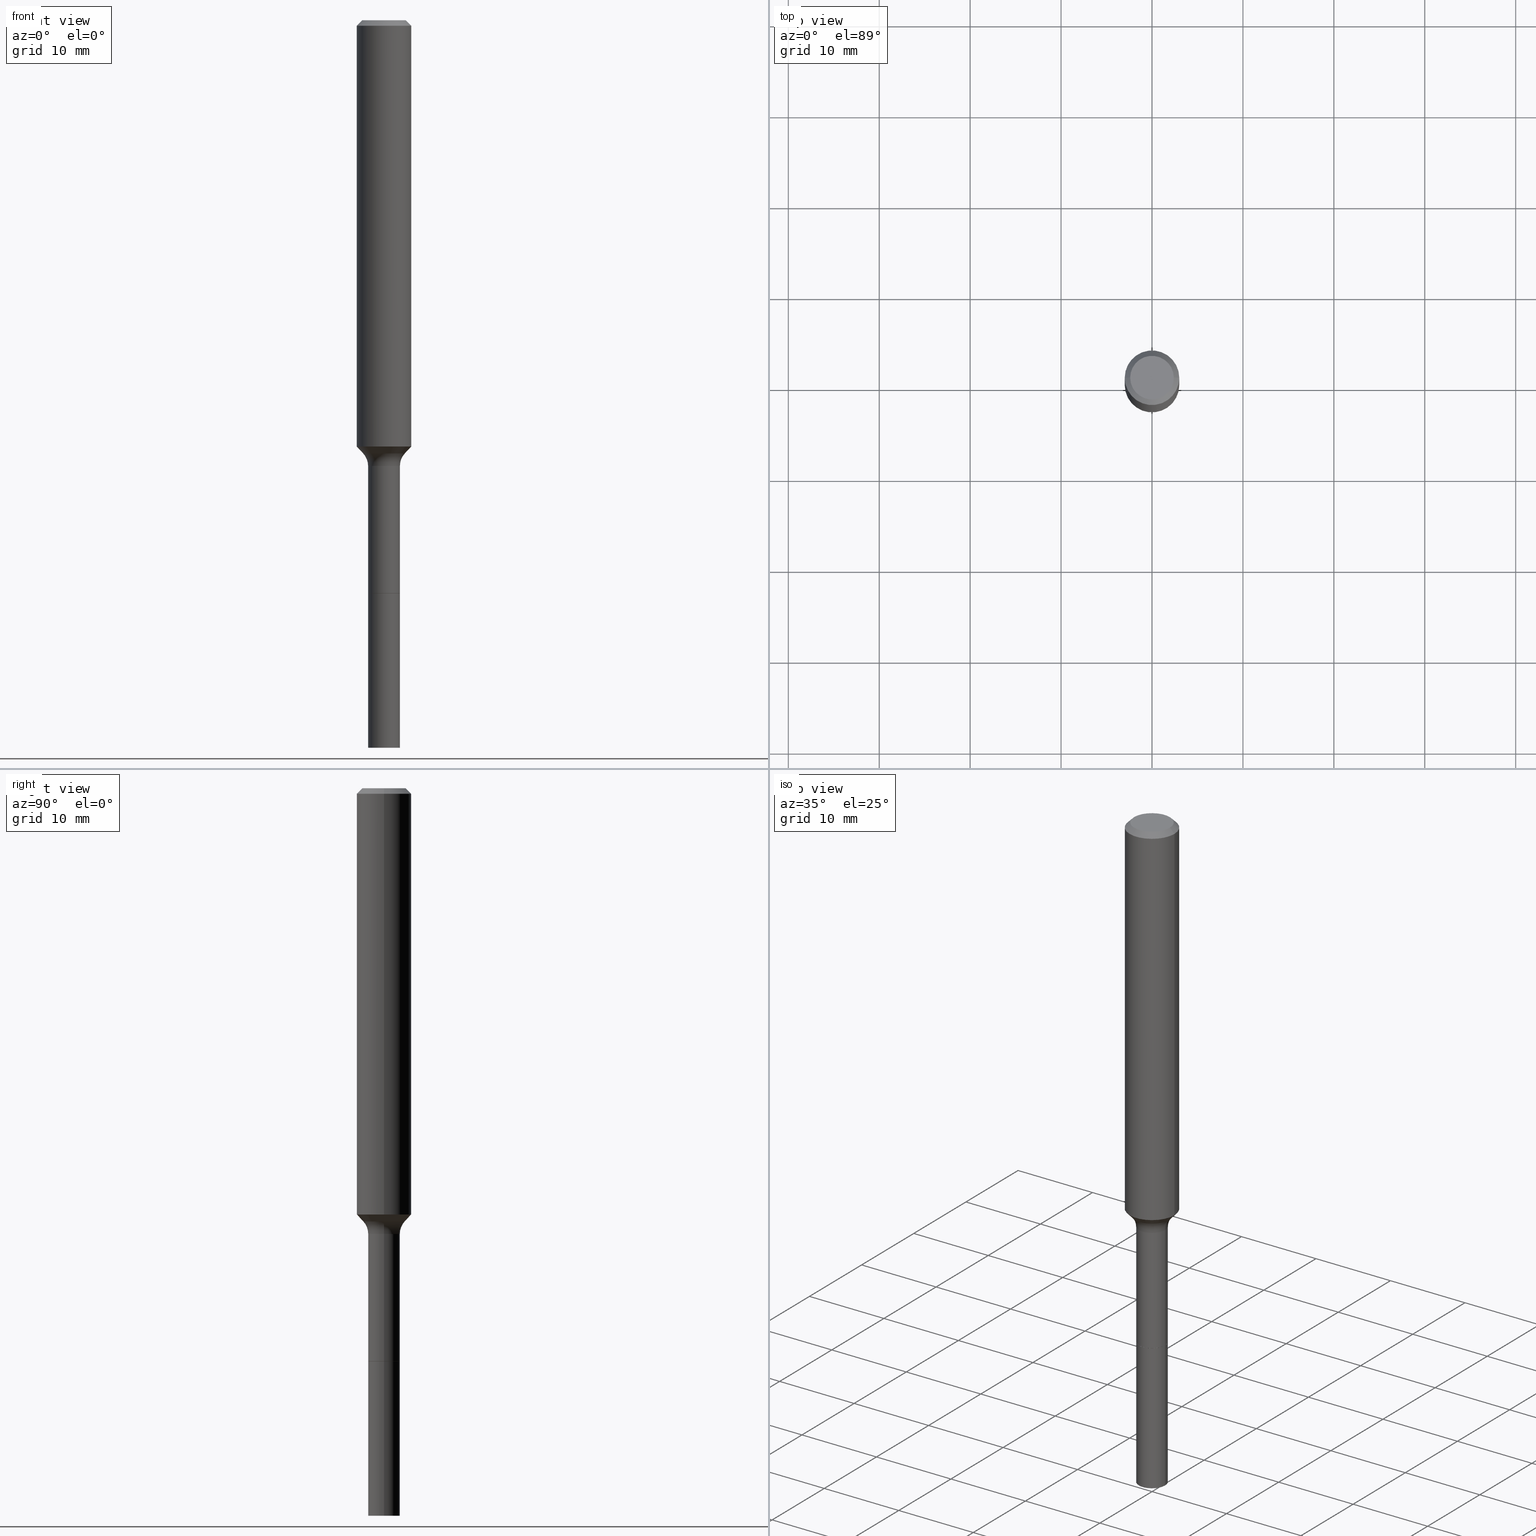
[diagram: canonical four-view strip — front | top / right | iso, engineering-drawing reading convention]
A machine part, canonical four-view strip (front | top / right | iso — engineering-drawing reading convention). The complete STEP part file that produces these views, byte-faithful:
ISO-10303-21;
HEADER;
FILE_DESCRIPTION (( 'STEP AP203' ),
    '1' );
FILE_NAME ('67821.STEP',
    '2025-04-01T15:31:03',
    ( '' ),
    ( '' ),
    'SwSTEP 2.0',
    'SolidWorks 2024',
    '' );
FILE_SCHEMA (( 'CONFIG_CONTROL_DESIGN' ));
ENDSEC;

DATA;
#1 = AXIS2_PLACEMENT_3D ( 'NONE', #496, #146, #144 ) ;
#2 = VERTEX_POINT ( 'NONE', #495 ) ;
#3 = ORIENTED_EDGE ( 'NONE', *, *, #454, .T. ) ;
#4 = CARTESIAN_POINT ( 'NONE',  ( -0.09039170387046638333, -5.904395942067965927E-15, -1.875040131195000237 ) ) ;
#5 = DIRECTION ( 'NONE',  ( -2.445468806185136597E-29, 3.491481338843145583E-15, 1.000000000000000000 ) ) ;
#6 = ORIENTED_EDGE ( 'NONE', *, *, #430, .F. ) ;
#7 = CALENDAR_DATE ( 2025, 1, 4 ) ;
#8 = PLANE ( 'NONE',  #432 ) ;
#9 = PRODUCT ( '67821', '67821', '', ( #207 ) ) ;
#10 = DIRECTION ( 'NONE',  ( 1.000000000000000000, -6.982962677686280121E-15, 0.000000000000000000 ) ) ;
#11 = ORIENTED_EDGE ( 'NONE', *, *, #195, .F. ) ;
#12 = CIRCLE ( 'NONE', #235, 0.07999999999999996003 ) ;
#13 = CARTESIAN_POINT ( 'NONE',  ( 5.776197320209328408E-31, -8.246878922347560526E-17, -0.02362000000000014435 ) ) ;
#14 = EDGE_CURVE ( 'NONE', #243, #37, #49, .T. ) ;
#15 = LINE ( 'NONE', #94, #390 ) ;
#16 = LOCAL_TIME ( 11, 31, 3.000000000000000000, #278 ) ;
#17 = CC_DESIGN_PERSON_AND_ORGANIZATION_ASSIGNMENT ( #518, #248, ( #9 ) ) ;
#18 = DIRECTION ( 'NONE',  ( -2.438088387897960049E-29, 3.491481338843145188E-15, 1.000000000000000000 ) ) ;
#19 = CARTESIAN_POINT ( 'NONE',  ( 6.066229920622851108E-29, -8.660968609134307449E-15, -2.480600000000000360 ) ) ;
#20 = PERSON_AND_ORGANIZATION ( #295, #192 ) ;
#21 = PERSON_AND_ORGANIZATION_ROLE ( 'classification_officer' ) ;
#22 = CYLINDRICAL_SURFACE ( 'NONE', #153, 0.1181000000000001077 ) ;
#23 = EDGE_CURVE ( 'NONE', #147, #306, #402, .T. ) ;
#24 = APPROVAL_STATUS ( 'not_yet_approved' ) ;
#25 = LOCAL_TIME ( 11, 31, 3.000000000000000000, #260 ) ;
#26 = DIRECTION ( 'NONE',  ( 1.000000000000000000, -6.982962677686260400E-15, 0.000000000000000000 ) ) ;
#27 = ADVANCED_FACE ( 'NONE', ( #379 ), #497, .T. ) ;
#28 = CC_DESIGN_DATE_AND_TIME_ASSIGNMENT ( #63, #141, ( #80 ) ) ;
#29 = DIRECTION ( 'NONE',  ( 1.000000000000000000, -6.982962677686278543E-15, 0.000000000000000000 ) ) ;
#30 = APPLICATION_PROTOCOL_DEFINITION ( 'international standard', 'config_control_design', 1994, #459 ) ;
#31 = CARTESIAN_POINT ( 'NONE',  ( 0.06889999999999993352, -7.218288519924316946E-15, -1.929599999999999982 ) ) ;
#32 = ORIENTED_EDGE ( 'NONE', *, *, #67, .T. ) ;
#33 = VECTOR ( 'NONE', #196, 39.37007874015748143 ) ;
#34 = CC_DESIGN_DATE_AND_TIME_ASSIGNMENT ( #164, #323, ( #95 ) ) ;
#35 = AXIS2_PLACEMENT_3D ( 'NONE', #404, #299, #55 ) ;
#36 = DIRECTION ( 'NONE',  ( -2.445468806185136597E-29, 3.491481338843145583E-15, 1.000000000000000000 ) ) ;
#37 = VERTEX_POINT ( 'NONE', #145 ) ;
#38 = DATE_AND_TIME ( #239, #393 ) ;
#39 = PRODUCT_DEFINITION_SHAPE ( 'NONE', 'NONE',  #95 ) ;
#40 = DIMENSIONAL_EXPONENTS ( 1.000000000000000000, 0.000000000000000000, 0.000000000000000000, 0.000000000000000000, 0.000000000000000000, 0.000000000000000000, 0.000000000000000000 ) ;
#41 = EDGE_LOOP ( 'NONE', ( #236, #256, #457, #357 ) ) ;
#42 = CARTESIAN_POINT ( 'NONE',  ( 4.512688689899725989E-29, -6.442923462749986025E-15, -1.845326621417590074 ) ) ;
#43 = VERTEX_POINT ( 'NONE', #53 ) ;
#44 = DIRECTION ( 'NONE',  ( -2.445468806185136597E-29, 3.491481338843145583E-15, 1.000000000000000000 ) ) ;
#45 = CIRCLE ( 'NONE', #423, 0.06840000000000000246 ) ;
#46 = PERSON_AND_ORGANIZATION ( #295, #192 ) ;
#47 = DIRECTION ( 'NONE',  ( 1.000000000000000000, -6.982962677686265922E-15, 4.876176775795935793E-29 ) ) ;
#48 = ORIENTED_EDGE ( 'NONE', *, *, #232, .T. ) ;
#49 = LINE ( 'NONE', #225, #332 ) ;
#50 = EDGE_CURVE ( 'NONE', #121, #243, #15, .T. ) ;
#51 = DIRECTION ( 'NONE',  ( 1.000000000000000000, -6.982962677686278543E-15, 0.000000000000000000 ) ) ;
#52 = EDGE_CURVE ( 'NONE', #206, #37, #228, .T. ) ;
#53 = CARTESIAN_POINT ( 'NONE',  ( -0.06890000000000021108, -9.339305172038629548E-15, -3.149600000000000399 ) ) ;
#54 = VECTOR ( 'NONE', #233, 39.37007874015748143 ) ;
#55 = DIRECTION ( 'NONE',  ( 1.000000000000000000, -6.982962677686270655E-15, 0.000000000000000000 ) ) ;
#56 = LINE ( 'NONE', #177, #509 ) ;
#57 = LOCAL_TIME ( 11, 31, 3.000000000000000000, #460 ) ;
#58 = CARTESIAN_POINT ( 'NONE',  ( 6.066229920622851108E-29, -8.660968609134307449E-15, -2.480600000000000360 ) ) ;
#59 = EDGE_CURVE ( 'NONE', #484, #90, #443, .T. ) ;
#60 = DIRECTION ( 'NONE',  ( -2.445468806185136877E-29, 3.491481338843145188E-15, 1.000000000000000000 ) ) ;
#61 = DESIGN_CONTEXT ( 'detailed design', #99, 'design' ) ;
#62 = AXIS2_PLACEMENT_3D ( 'NONE', #264, #376, #100 ) ;
#63 = DATE_AND_TIME ( #270, #57 ) ;
#64 = AXIS2_PLACEMENT_3D ( 'NONE', #88, #18, #47 ) ;
#65 = DIRECTION ( 'NONE',  ( 1.000000000000000000, -6.982962677686262766E-15, 0.000000000000000000 ) ) ;
#66 = CARTESIAN_POINT ( 'NONE',  ( 0.000000000000000000, 0.000000000000000000, 0.000000000000000000 ) ) ;
#67 = EDGE_CURVE ( 'NONE', #306, #37, #56, .T. ) ;
#68 = DIRECTION ( 'NONE',  ( 0.000000000000000000, 0.000000000000000000, 1.000000000000000000 ) ) ;
#69 =( NAMED_UNIT ( * ) SI_UNIT ( $, .STERADIAN. ) SOLID_ANGLE_UNIT ( ) );
#70 = DIRECTION ( 'NONE',  ( 7.105427357601001859E-15, 1.000000000000000000, -3.491481338843145583E-15 ) ) ;
#71 =( NAMED_UNIT ( * ) PLANE_ANGLE_UNIT ( ) SI_UNIT ( $, .RADIAN. ) );
#72 = LINE ( 'NONE', #339, #198 ) ;
#73 = ADVANCED_FACE ( 'NONE', ( #182 ), #305, .T. ) ;
#74 = ORIENTED_EDGE ( 'NONE', *, *, #382, .F. ) ;
#75 = EDGE_LOOP ( 'NONE', ( #127, #133, #251, #6 ) ) ;
#76 = AXIS2_PLACEMENT_3D ( 'NONE', #42, #400, #511 ) ;
#77 = FACE_OUTER_BOUND ( 'NONE', #227, .T. ) ;
#78 = VERTEX_POINT ( 'NONE', #143 ) ;
#79 = ORIENTED_EDGE ( 'NONE', *, *, #461, .F. ) ;
#80 = SECURITY_CLASSIFICATION ( '', '', #517 ) ;
#81 = CARTESIAN_POINT ( 'NONE',  ( 0.1181000000000002187, -7.267611354984735865E-15, -1.845326621417590074 ) ) ;
#82 = DIRECTION ( 'NONE',  ( -0.7071067811860524133, 7.493145998868563446E-15, 0.7071067811870423991 ) ) ;
#83 = ORIENTED_EDGE ( 'NONE', *, *, #151, .F. ) ;
#84 = EDGE_LOOP ( 'NONE', ( #515, #171 ) ) ;
#85 = ADVANCED_FACE ( 'NONE', ( #302 ), #469, .T. ) ;
#86 = ORIENTED_EDGE ( 'NONE', *, *, #67, .F. ) ;
#87 = EDGE_CURVE ( 'NONE', #477, #442, #290, .T. ) ;
#88 = CARTESIAN_POINT ( 'NONE',  ( -7.770290382331909019E-29, -2.847565320879387641E-14, -2.480600000000000804 ) ) ;
#89 = CLOSED_SHELL ( 'NONE', ( #419, #335, #269, #406, #165, #102, #428, #157, #175, #414, #73, #343, #388, #85 ) ) ;
#90 = VERTEX_POINT ( 'NONE', #187 ) ;
#91 = ORIENTED_EDGE ( 'NONE', *, *, #396, .T. ) ;
#92 = CARTESIAN_POINT ( 'NONE',  ( 0.09447999999999998066, -7.704367267948738690E-16, -3.085620075131172158E-17 ) ) ;
#93 = CC_DESIGN_SECURITY_CLASSIFICATION ( #80, ( #215 ) ) ;
#94 = CARTESIAN_POINT ( 'NONE',  ( 0.09039170387046638333, -7.177869522149282409E-15, -1.875040131195000237 ) ) ;
#95 = PRODUCT_DEFINITION ( 'UNKNOWN', '', #215, #61 ) ;
#96 = DIRECTION ( 'NONE',  ( -1.000000000000000000, 6.982962677686265922E-15, -4.876176775795935793E-29 ) ) ;
#97 = ORIENTED_EDGE ( 'NONE', *, *, #244, .F. ) ;
#98 = LINE ( 'NONE', #130, #489 ) ;
#99 = APPLICATION_CONTEXT ( 'configuration controlled 3d designs of mechanical parts and assemblies' ) ;
#100 = DIRECTION ( 'NONE',  ( 1.000000000000000000, -6.982962677686258822E-15, 0.000000000000000000 ) ) ;
#101 = AXIS2_PLACEMENT_3D ( 'NONE', #259, #453, #218 ) ;
#102 = ADVANCED_FACE ( 'NONE', ( #416 ), #294, .T. ) ;
#103 = DIRECTION ( 'NONE',  ( -2.445468806185136597E-29, 3.491481338843145583E-15, 1.000000000000000000 ) ) ;
#104 = EDGE_LOOP ( 'NONE', ( #168, #32, #476, #172 ) ) ;
#105 = CC_DESIGN_APPROVAL ( #337, ( #215 ) ) ;
#106 = CARTESIAN_POINT ( 'NONE',  ( 6.066229920622851108E-29, -8.660968609134310604E-15, -2.480600000000000804 ) ) ;
#107 = DATE_AND_TIME ( #427, #16 ) ;
#108 = AXIS2_PLACEMENT_3D ( 'NONE', #336, #185, #491 ) ;
#109 = AXIS2_PLACEMENT_3D ( 'NONE', #482, #263, #179 ) ;
#110 =( GEOMETRIC_REPRESENTATION_CONTEXT ( 3 ) GLOBAL_UNCERTAINTY_ASSIGNED_CONTEXT ( ( #273 ) ) GLOBAL_UNIT_ASSIGNED_CONTEXT ( ( #314, #71, #69 ) ) REPRESENTATION_CONTEXT ( 'NONE', 'WORKASPACE' ) );
#111 = EDGE_CURVE ( 'NONE', #342, #206, #494, .T. ) ;
#112 = CARTESIAN_POINT ( 'NONE',  ( -0.1180999999999999966, 7.422191030112725094E-16, -0.02362000000000014435 ) ) ;
#113 = PRODUCT_RELATED_PRODUCT_CATEGORY ( 'detail', '', ( #9 ) ) ;
#114 = DIRECTION ( 'NONE',  ( -2.445468806185136597E-29, 3.491481338843145583E-15, 1.000000000000000000 ) ) ;
#115 = CIRCLE ( 'NONE', #190, 0.1180999999999999966 ) ;
#116 = EDGE_CURVE ( 'NONE', #210, #284, #386, .T. ) ;
#117 = CC_DESIGN_PERSON_AND_ORGANIZATION_ASSIGNMENT ( #380, #395, ( #215 ) ) ;
#118 = APPROVAL_ROLE ( '' ) ;
#119 = AXIS2_PLACEMENT_3D ( 'NONE', #465, #68, #253 ) ;
#120 = ORIENTED_EDGE ( 'NONE', *, *, #425, .T. ) ;
#121 = VERTEX_POINT ( 'NONE', #312 ) ;
#122 = ORIENTED_EDGE ( 'NONE', *, *, #317, .T. ) ;
#123 = ORIENTED_EDGE ( 'NONE', *, *, #23, .F. ) ;
#124 = AXIS2_PLACEMENT_3D ( 'NONE', #159, #318, #347 ) ;
#125 = MANIFOLD_SOLID_BREP ( 'Body-Move/Copy2[2]', #89 ) ;
#126 = LINE ( 'NONE', #478, #203 ) ;
#127 = ORIENTED_EDGE ( 'NONE', *, *, #137, .T. ) ;
#128 = ORIENTED_EDGE ( 'NONE', *, *, #232, .F. ) ;
#129 = DIRECTION ( 'NONE',  ( 1.000000000000000000, -6.982962677686261977E-15, 0.000000000000000000 ) ) ;
#130 = CARTESIAN_POINT ( 'NONE',  ( -0.06890000000000010005, -8.171404664195598696E-15, -2.480600000000000360 ) ) ;
#131 = ADVANCED_BREP_SHAPE_REPRESENTATION ( '67821', ( #291, #125, #119 ), #110 ) ;
#132 = LINE ( 'NONE', #366, #54 ) ;
#133 = ORIENTED_EDGE ( 'NONE', *, *, #151, .T. ) ;
#134 = PERSON_AND_ORGANIZATION_ROLE ( 'design_supplier' ) ;
#135 = ORIENTED_EDGE ( 'NONE', *, *, #362, .F. ) ;
#136 = CARTESIAN_POINT ( 'NONE',  ( 4.585352151182659149E-29, -6.546667627649346725E-15, -1.875040131195000237 ) ) ;
#137 = EDGE_CURVE ( 'NONE', #442, #477, #45, .T. ) ;
#138 = AXIS2_PLACEMENT_3D ( 'NONE', #503, #504, #463 ) ;
#139 = AXIS2_PLACEMENT_3D ( 'NONE', #13, #452, #328 ) ;
#140 = CARTESIAN_POINT ( 'NONE',  ( 7.545787641473140628E-46, -1.077338491108201769E-31, -3.085620075131671975E-17 ) ) ;
#141 = DATE_TIME_ROLE ( 'classification_date' ) ;
#142 = DIRECTION ( 'NONE',  ( 1.000000000000000000, -6.982962677686266711E-15, 4.876176775795935793E-29 ) ) ;
#143 = CARTESIAN_POINT ( 'NONE',  ( 0.06890000000000019720, -1.147789575331295763E-14, -3.149600000000000399 ) ) ;
#144 = DIRECTION ( 'NONE',  ( 1.000000000000000000, -6.982962677686267499E-15, 4.875432709231658792E-29 ) ) ;
#145 = CARTESIAN_POINT ( 'NONE',  ( 0.1180999999999999966, -9.071566814582237199E-16, -0.02362000000000014435 ) ) ;
#146 = DIRECTION ( 'NONE',  ( -2.445468806185136597E-29, 3.491481338843145583E-15, 1.000000000000000000 ) ) ;
#147 = VERTEX_POINT ( 'NONE', #285 ) ;
#148 = DIRECTION ( 'NONE',  ( 1.000000000000000000, -6.982962677686267499E-15, 4.875432709231658792E-29 ) ) ;
#149 = AXIS2_PLACEMENT_3D ( 'NONE', #19, #341, #10 ) ;
#150 = CARTESIAN_POINT ( 'NONE',  ( 0.000000000000000000, 0.000000000000000000, 0.000000000000000000 ) ) ;
#151 = EDGE_CURVE ( 'NONE', #477, #513, #126, .T. ) ;
#152 = CIRCLE ( 'NONE', #431, 0.1181000000000002187 ) ;
#153 = AXIS2_PLACEMENT_3D ( 'NONE', #315, #226, #344 ) ;
#154 = LINE ( 'NONE', #112, #498 ) ;
#155 = CARTESIAN_POINT ( 'NONE',  ( -0.09039170387046638333, -5.904395942067966716E-15, -1.875040131195000237 ) ) ;
#156 = FACE_OUTER_BOUND ( 'NONE', #479, .T. ) ;
#157 = ADVANCED_FACE ( 'NONE', ( #201 ), #282, .F. ) ;
#158 = DIRECTION ( 'NONE',  ( 1.000000000000000000, -6.982962677686273021E-15, 0.000000000000000000 ) ) ;
#159 = CARTESIAN_POINT ( 'NONE',  ( 6.066229920622851108E-29, -8.660968609134307449E-15, -2.480600000000000360 ) ) ;
#160 = EDGE_LOOP ( 'NONE', ( #401, #48 ) ) ;
#161 = CC_DESIGN_APPROVAL ( #426, ( #80 ) ) ;
#162 = DIRECTION ( 'NONE',  ( -2.445468806185136597E-29, 3.491481338843145583E-15, 1.000000000000000000 ) ) ;
#163 = ORIENTED_EDGE ( 'NONE', *, *, #441, .F. ) ;
#164 = DATE_AND_TIME ( #7, #257 ) ;
#165 = ADVANCED_FACE ( 'NONE', ( #77 ), #180, .F. ) ;
#166 = EDGE_LOOP ( 'NONE', ( #326, #439, #246, #436 ) ) ;
#167 = PERSON_AND_ORGANIZATION ( #295, #192 ) ;
#168 = ORIENTED_EDGE ( 'NONE', *, *, #249, .F. ) ;
#169 = EDGE_CURVE ( 'NONE', #2, #210, #245, .T. ) ;
#170 = AXIS2_PLACEMENT_3D ( 'NONE', #361, #162, #250 ) ;
#171 = ORIENTED_EDGE ( 'NONE', *, *, #87, .F. ) ;
#172 = ORIENTED_EDGE ( 'NONE', *, *, #433, .F. ) ;
#173 = FACE_OUTER_BOUND ( 'NONE', #288, .T. ) ;
#174 = ORIENTED_EDGE ( 'NONE', *, *, #370, .F. ) ;
#175 = ADVANCED_FACE ( 'NONE', ( #208 ), #373, .T. ) ;
#176 = CARTESIAN_POINT ( 'NONE',  ( 4.585352151182659149E-29, -6.546667627649346725E-15, -1.875040131195000237 ) ) ;
#177 = CARTESIAN_POINT ( 'NONE',  ( 0.1180999999999999966, -8.926936027602933910E-16, -0.02362000000000014435 ) ) ;
#178 = PERSON_AND_ORGANIZATION ( #295, #192 ) ;
#179 = DIRECTION ( 'NONE',  ( 1.000000000000000000, -6.982962677686260400E-15, 0.000000000000000000 ) ) ;
#180 = TOROIDAL_SURFACE ( 'NONE', #170, 0.1488999999999999491, 0.07999999999999994615 ) ;
#181 = CONICAL_SURFACE ( 'NONE', #139, 0.1180999999999999966, 0.7853981633974461696 ) ;
#182 = FACE_OUTER_BOUND ( 'NONE', #247, .T. ) ;
#183 = CIRCLE ( 'NONE', #298, 0.06890000000000001679 ) ;
#184 = DIRECTION ( 'NONE',  ( -2.445468806185136597E-29, 3.491481338843145583E-15, 1.000000000000000000 ) ) ;
#185 = DIRECTION ( 'NONE',  ( 2.445468806185136597E-29, -3.491481338843145583E-15, -1.000000000000000000 ) ) ;
#186 = DIRECTION ( 'NONE',  ( 1.000000000000000000, -6.982962677686261977E-15, 0.000000000000000000 ) ) ;
#187 = CARTESIAN_POINT ( 'NONE',  ( -0.06890000000000000291, -9.339305172038631126E-15, -2.480600000000000360 ) ) ;
#188 = EDGE_CURVE ( 'NONE', #243, #342, #308, .T. ) ;
#189 = AXIS2_PLACEMENT_3D ( 'NONE', #106, #500, #420 ) ;
#190 = AXIS2_PLACEMENT_3D ( 'NONE', #368, #330, #217 ) ;
#191 = DIRECTION ( 'NONE',  ( 2.438088387897960049E-29, -3.491481338843145188E-15, -1.000000000000000000 ) ) ;
#192 = ORGANIZATION ( 'UNSPECIFIED', 'UNSPECIFIED', '' ) ;
#193 = EDGE_CURVE ( 'NONE', #342, #243, #152, .T. ) ;
#194 = FACE_OUTER_BOUND ( 'NONE', #286, .T. ) ;
#195 = EDGE_CURVE ( 'NONE', #78, #484, #132, .T. ) ;
#196 = DIRECTION ( 'NONE',  ( -2.445468806185136877E-29, 3.491481338843145188E-15, 1.000000000000000000 ) ) ;
#197 = LINE ( 'NONE', #383, #514 ) ;
#198 = VECTOR ( 'NONE', #261, 39.37007874015748143 ) ;
#199 = PLANE ( 'NONE',  #492 ) ;
#200 = DIRECTION ( 'NONE',  ( -1.000000000000000000, 7.105427357601001859E-15, 0.000000000000000000 ) ) ;
#201 = FACE_OUTER_BOUND ( 'NONE', #367, .T. ) ;
#202 = ORIENTED_EDGE ( 'NONE', *, *, #430, .T. ) ;
#203 = VECTOR ( 'NONE', #82, 39.37007874015748854 ) ;
#204 = CONICAL_SURFACE ( 'NONE', #292, 0.09039170387046638333, 0.7504915783575621946 ) ;
#205 = CARTESIAN_POINT ( 'NONE',  ( 6.066229920622851108E-29, -8.660968609134310604E-15, -2.480600000000000804 ) ) ;
#206 = VERTEX_POINT ( 'NONE', #389 ) ;
#207 = MECHANICAL_CONTEXT ( 'NONE', #459, 'mechanical' ) ;
#208 = FACE_OUTER_BOUND ( 'NONE', #320, .T. ) ;
#209 = ORIENTED_EDGE ( 'NONE', *, *, #433, .T. ) ;
#210 = VERTEX_POINT ( 'NONE', #31 ) ;
#211 = AXIS2_PLACEMENT_3D ( 'NONE', #58, #301, #96 ) ;
#212 = DIRECTION ( 'NONE',  ( 1.000000000000000000, -6.982962677686267499E-15, 0.000000000000000000 ) ) ;
#213 = ORIENTED_EDGE ( 'NONE', *, *, #441, .T. ) ;
#214 = PERSON_AND_ORGANIZATION_ROLE ( 'creator' ) ;
#215 = PRODUCT_DEFINITION_FORMATION_WITH_SPECIFIED_SOURCE ( 'ANY', '', #9, .NOT_KNOWN. ) ;
#216 = CC_DESIGN_PERSON_AND_ORGANIZATION_ASSIGNMENT ( #46, #214, ( #95 ) ) ;
#217 = DIRECTION ( 'NONE',  ( 1.000000000000000000, -6.982962677686266711E-15, 0.000000000000000000 ) ) ;
#218 = DIRECTION ( 'NONE',  ( 1.000000000000000000, -6.982962677686266711E-15, 0.000000000000000000 ) ) ;
#219 = FACE_OUTER_BOUND ( 'NONE', #512, .T. ) ;
#220 = DIRECTION ( 'NONE',  ( 0.6819983600624988096, -2.208861293262478564E-15, 0.7313537016191701268 ) ) ;
#221 = FACE_OUTER_BOUND ( 'NONE', #160, .T. ) ;
#222 = DIRECTION ( 'NONE',  ( 1.000000000000000000, -6.982962677686258822E-15, 0.000000000000000000 ) ) ;
#223 = DIRECTION ( 'NONE',  ( -2.445468806185136597E-29, 3.491481338843145583E-15, 1.000000000000000000 ) ) ;
#224 = AXIS2_PLACEMENT_3D ( 'NONE', #385, #506, #26 ) ;
#225 = CARTESIAN_POINT ( 'NONE',  ( 0.1181000000000001077, -8.246878922347488542E-16, 5.758764772215005345E-30 ) ) ;
#226 = DIRECTION ( 'NONE',  ( -2.445468806185136597E-29, 3.491481338843145583E-15, 1.000000000000000000 ) ) ;
#227 = EDGE_LOOP ( 'NONE', ( #74, #410, #213, #487 ) ) ;
#228 = CIRCLE ( 'NONE', #101, 0.1180999999999999966 ) ;
#229 = LINE ( 'NONE', #155, #413 ) ;
#230 = CIRCLE ( 'NONE', #1, 0.09447999999999998066 ) ;
#231 = APPROVAL_PERSON_ORGANIZATION ( #20, #337, #118 ) ;
#232 = EDGE_CURVE ( 'NONE', #90, #484, #351, .T. ) ;
#233 = DIRECTION ( 'NONE',  ( -2.445468806185136877E-29, 3.491481338843145188E-15, 1.000000000000000000 ) ) ;
#234 = DIRECTION ( 'NONE',  ( 1.000000000000000000, -6.982962677686264344E-15, 4.883557194083112340E-29 ) ) ;
#235 = AXIS2_PLACEMENT_3D ( 'NONE', #422, #502, #65 ) ;
#236 = ORIENTED_EDGE ( 'NONE', *, *, #188, .T. ) ;
#237 = EDGE_CURVE ( 'NONE', #359, #342, #229, .T. ) ;
#238 = VECTOR ( 'NONE', #397, 39.37007874015748143 ) ;
#239 = CALENDAR_DATE ( 2025, 1, 4 ) ;
#240 = CARTESIAN_POINT ( 'NONE',  ( 4.512688689899725989E-29, -6.442923462749986025E-15, -1.845326621417590074 ) ) ;
#241 = EDGE_LOOP ( 'NONE', ( #3, #394, #434, #281 ) ) ;
#242 = CIRCLE ( 'NONE', #319, 0.06889999999999993352 ) ;
#243 = VERTEX_POINT ( 'NONE', #81 ) ;
#244 = EDGE_CURVE ( 'NONE', #513, #284, #72, .T. ) ;
#245 = LINE ( 'NONE', #438, #238 ) ;
#246 = ORIENTED_EDGE ( 'NONE', *, *, #14, .T. ) ;
#247 = EDGE_LOOP ( 'NONE', ( #86, #123, #209, #480 ) ) ;
#248 = PERSON_AND_ORGANIZATION_ROLE ( 'design_owner' ) ;
#249 = EDGE_CURVE ( 'NONE', #306, #147, #230, .T. ) ;
#250 = DIRECTION ( 'NONE',  ( 1.000000000000000000, -6.982962677686264344E-15, 4.883557194083112340E-29 ) ) ;
#251 = ORIENTED_EDGE ( 'NONE', *, *, #454, .F. ) ;
#252 = ORIENTED_EDGE ( 'NONE', *, *, #396, .F. ) ;
#253 = DIRECTION ( 'NONE',  ( 1.000000000000000000, 0.000000000000000000, 0.000000000000000000 ) ) ;
#254 = CLOSED_SHELL ( 'NONE', ( #27, #508, #350, #307 ) ) ;
#255 = CARTESIAN_POINT ( 'NONE',  ( 3.772893820736570314E-46, -5.386692455541008845E-32, -1.542810037565835988E-17 ) ) ;
#256 = ORIENTED_EDGE ( 'NONE', *, *, #111, .T. ) ;
#257 = LOCAL_TIME ( 11, 31, 3.000000000000000000, #481 ) ;
#258 = FACE_OUTER_BOUND ( 'NONE', #84, .T. ) ;
#259 = CARTESIAN_POINT ( 'NONE',  ( 5.776197320209328408E-31, -8.246878922347560526E-17, -0.02362000000000014435 ) ) ;
#260 = COORDINATED_UNIVERSAL_TIME_OFFSET ( 5, 0, .BEHIND. ) ;
#261 = DIRECTION ( 'NONE',  ( -2.445468806185136877E-29, 3.491481338843145188E-15, 1.000000000000000000 ) ) ;
#262 = ORIENTED_EDGE ( 'NONE', *, *, #188, .F. ) ;
#263 = DIRECTION ( 'NONE',  ( -2.445468806185136597E-29, 3.491481338843145583E-15, 1.000000000000000000 ) ) ;
#264 = CARTESIAN_POINT ( 'NONE',  ( 6.066229920622851108E-29, -8.660968609134310604E-15, -2.480600000000000804 ) ) ;
#265 = DIRECTION ( 'NONE',  ( -2.445468806185136597E-29, 3.491481338843145583E-15, 1.000000000000000000 ) ) ;
#266 = ORIENTED_EDGE ( 'NONE', *, *, #362, .T. ) ;
#267 = CARTESIAN_POINT ( 'NONE',  ( -0.06890000000000001679, -7.208628685009600429E-15, -2.480100000000000193 ) ) ;
#268 = FACE_OUTER_BOUND ( 'NONE', #75, .T. ) ;
#269 = ADVANCED_FACE ( 'NONE', ( #415 ), #409, .T. ) ;
#270 = CALENDAR_DATE ( 2025, 1, 4 ) ;
#271 = CIRCLE ( 'NONE', #333, 0.09039170387046638333 ) ;
#272 = DIRECTION ( 'NONE',  ( 1.000000000000000000, -6.982962677686267499E-15, 4.876176775795935793E-29 ) ) ;
#273 = UNCERTAINTY_MEASURE_WITH_UNIT (LENGTH_MEASURE( 1.000000000000000082E-05 ), #314, 'distance_accuracy_value', 'NONE');
#274 = DIRECTION ( 'NONE',  ( -0.7071067811865460184, 2.468850131082241283E-15, -0.7071067811865490160 ) ) ;
#275 = AXIS2_PLACEMENT_3D ( 'NONE', #300, #451, #222 ) ;
#276 = CALENDAR_DATE ( 2025, 1, 4 ) ;
#277 = CARTESIAN_POINT ( 'NONE',  ( -0.1488999999999999491, -5.679164257884944590E-15, -1.929599999999999982 ) ) ;
#278 = COORDINATED_UNIVERSAL_TIME_OFFSET ( 5, 0, .BEHIND. ) ;
#279 = CARTESIAN_POINT ( 'NONE',  ( 4.718776608414840041E-29, -6.737162391431733996E-15, -1.929599999999999982 ) ) ;
#280 = ORIENTED_EDGE ( 'NONE', *, *, #50, .T. ) ;
#281 = ORIENTED_EDGE ( 'NONE', *, *, #169, .F. ) ;
#282 = TOROIDAL_SURFACE ( 'NONE', #363, 0.1488999999999999491, 0.07999999999999994615 ) ;
#283 = ORIENTED_EDGE ( 'NONE', *, *, #317, .F. ) ;
#284 = VERTEX_POINT ( 'NONE', #417 ) ;
#285 = CARTESIAN_POINT ( 'NONE',  ( -0.09447999999999998066, 7.009847083995354710E-16, -3.085620075132147757E-17 ) ) ;
#286 = EDGE_LOOP ( 'NONE', ( #97, #122, #448, #163 ) ) ;
#287 = DIRECTION ( 'NONE',  ( -2.445468806185136597E-29, 3.491481338843145583E-15, 1.000000000000000000 ) ) ;
#288 = EDGE_LOOP ( 'NONE', ( #369, #289 ) ) ;
#289 = ORIENTED_EDGE ( 'NONE', *, *, #249, .T. ) ;
#290 = CIRCLE ( 'NONE', #62, 0.06840000000000000246 ) ;
#291 = MANIFOLD_SOLID_BREP ( 'Body-Move/Copy2[1]', #254 ) ;
#292 = AXIS2_PLACEMENT_3D ( 'NONE', #490, #223, #377 ) ;
#293 = DIRECTION ( 'NONE',  ( -2.445468806185136597E-29, 3.491481338843145583E-15, 1.000000000000000000 ) ) ;
#294 = CYLINDRICAL_SURFACE ( 'NONE', #356, 0.06889999999999997515 ) ;
#295 = PERSON ( 'UNSPECIFIED', 'UNSPECIFIED', 'UNSPECIFIED', ('UNSPECIFIED'), ('UNSPECIFIED'), ('UNSPECIFIED') ) ;
#296 = CARTESIAN_POINT ( 'NONE',  ( 6.066229920622851108E-29, -8.660968609134307449E-15, -2.480600000000000360 ) ) ;
#297 = APPROVAL_STATUS ( 'not_yet_approved' ) ;
#298 = AXIS2_PLACEMENT_3D ( 'NONE', #468, #114, #29 ) ;
#299 = DIRECTION ( 'NONE',  ( -2.445468806185136597E-29, 3.491481338843145583E-15, 1.000000000000000000 ) ) ;
#300 = CARTESIAN_POINT ( 'NONE',  ( 6.066229920622851108E-29, -8.660968609134310604E-15, -2.480600000000000804 ) ) ;
#301 = DIRECTION ( 'NONE',  ( 2.438088387897960049E-29, -3.491481338843145188E-15, -1.000000000000000000 ) ) ;
#302 = FACE_OUTER_BOUND ( 'NONE', #483, .T. ) ;
#303 =( LENGTH_UNIT ( ) NAMED_UNIT ( * ) SI_UNIT ( $, .METRE. ) );
#304 = CARTESIAN_POINT ( 'NONE',  ( -0.1181000000000002187, -5.603772491817307039E-15, -1.845326621417590074 ) ) ;
#305 = CONICAL_SURFACE ( 'NONE', #108, 0.1180999999999999966, 0.7853981633974461696 ) ;
#306 = VERTEX_POINT ( 'NONE', #92 ) ;
#307 = ADVANCED_FACE ( 'NONE', ( #221 ), #411, .F. ) ;
#308 = CIRCLE ( 'NONE', #76, 0.1181000000000002187 ) ;
#309 = AXIS2_PLACEMENT_3D ( 'NONE', #493, #103, #51 ) ;
#310 = FACE_OUTER_BOUND ( 'NONE', #166, .T. ) ;
#311 = DIRECTION ( 'NONE',  ( -0.6819983600624988096, 7.399397606724288154E-15, 0.7313537016191701268 ) ) ;
#312 = CARTESIAN_POINT ( 'NONE',  ( 0.09039170387046638333, -7.177869522149282409E-15, -1.875040131195000237 ) ) ;
#313 = EDGE_CURVE ( 'NONE', #37, #206, #115, .T. ) ;
#314 =( CONVERSION_BASED_UNIT ( 'INCH', #360 ) LENGTH_UNIT ( ) NAMED_UNIT ( #40 ) );
#315 = CARTESIAN_POINT ( 'NONE',  ( 0.000000000000000000, 0.000000000000000000, 0.000000000000000000 ) ) ;
#316 = CARTESIAN_POINT ( 'NONE',  ( 0.06840000000000000246, -9.138603256288049758E-15, -2.480600000000000804 ) ) ;
#317 = EDGE_CURVE ( 'NONE', #513, #2, #374, .T. ) ;
#318 = DIRECTION ( 'NONE',  ( -2.445468806185136597E-29, 3.491481338843145583E-15, 1.000000000000000000 ) ) ;
#319 = AXIS2_PLACEMENT_3D ( 'NONE', #387, #507, #158 ) ;
#320 = EDGE_LOOP ( 'NONE', ( #325, #505, #280, #444 ) ) ;
#321 = CARTESIAN_POINT ( 'NONE',  ( -0.1181000000000001077, 8.391509709326790846E-16, -5.809262341591049389E-30 ) ) ;
#322 = CARTESIAN_POINT ( 'NONE',  ( 4.585352151182659149E-29, -6.546667627649346725E-15, -1.875040131195000237 ) ) ;
#323 = DATE_TIME_ROLE ( 'creation_date' ) ;
#324 = ORIENTED_EDGE ( 'NONE', *, *, #370, .T. ) ;
#325 = ORIENTED_EDGE ( 'NONE', *, *, #237, .F. ) ;
#326 = ORIENTED_EDGE ( 'NONE', *, *, #111, .F. ) ;
#327 = PERSON_AND_ORGANIZATION ( #295, #192 ) ;
#328 = DIRECTION ( 'NONE',  ( -1.000000000000000000, 6.982962677686266711E-15, 0.000000000000000000 ) ) ;
#329 = PERSON_AND_ORGANIZATION ( #295, #192 ) ;
#330 = DIRECTION ( 'NONE',  ( -2.445468806185136597E-29, 3.491481338843145583E-15, 1.000000000000000000 ) ) ;
#331 = DIRECTION ( 'NONE',  ( 1.000000000000000000, -6.982962677686270655E-15, 0.000000000000000000 ) ) ;
#332 = VECTOR ( 'NONE', #60, 39.37007874015748143 ) ;
#333 = AXIS2_PLACEMENT_3D ( 'NONE', #176, #287, #186 ) ;
#334 = FACE_OUTER_BOUND ( 'NONE', #398, .T. ) ;
#335 = ADVANCED_FACE ( 'NONE', ( #375 ), #181, .T. ) ;
#336 = CARTESIAN_POINT ( 'NONE',  ( 5.776197320209328408E-31, -8.246878922347560526E-17, -0.02362000000000014435 ) ) ;
#337 = APPROVAL ( #24, 'UNSPECIFIED' ) ;
#338 = DIRECTION ( 'NONE',  ( -1.000000000000000000, 6.982962677686265922E-15, -4.876176775795935793E-29 ) ) ;
#339 = CARTESIAN_POINT ( 'NONE',  ( -0.06889999999999997515, 4.895639449387088515E-16, -3.389146277185628616E-30 ) ) ;
#340 = DIRECTION ( 'NONE',  ( 1.000000000000000000, -6.982962677686267499E-15, 4.876176775795935793E-29 ) ) ;
#341 = DIRECTION ( 'NONE',  ( -2.445468806185136597E-29, 3.491481338843145583E-15, 1.000000000000000000 ) ) ;
#342 = VERTEX_POINT ( 'NONE', #304 ) ;
#343 = ADVANCED_FACE ( 'NONE', ( #173 ), #8, .F. ) ;
#344 = DIRECTION ( 'NONE',  ( 1.000000000000000000, -6.982962677686266711E-15, 4.876176775795935793E-29 ) ) ;
#345 = AXIS2_PLACEMENT_3D ( 'NONE', #450, #265, #142 ) ;
#346 = CIRCLE ( 'NONE', #435, 0.07999999999999996003 ) ;
#347 = DIRECTION ( 'NONE',  ( 1.000000000000000000, -6.982962677686280121E-15, 0.000000000000000000 ) ) ;
#348 = CYLINDRICAL_SURFACE ( 'NONE', #458, 0.06889999999999997515 ) ;
#349 = DIRECTION ( 'NONE',  ( 0.7071067811860524133, -2.468850131077071878E-15, 0.7071067811870423991 ) ) ;
#350 = ADVANCED_FACE ( 'NONE', ( #219 ), #365, .T. ) ;
#351 = CIRCLE ( 'NONE', #124, 0.06890000000000000291 ) ;
#352 = CC_DESIGN_PERSON_AND_ORGANIZATION_ASSIGNMENT ( #167, #21, ( #80 ) ) ;
#353 = CARTESIAN_POINT ( 'NONE',  ( 0.06890000000000000291, -9.142094737626892765E-15, -2.480600000000000360 ) ) ;
#354 = APPROVAL_PERSON_ORGANIZATION ( #178, #426, #449 ) ;
#355 = CARTESIAN_POINT ( 'NONE',  ( -0.06840000000000000246, -8.172308150700289971E-15, -2.480600000000000804 ) ) ;
#356 = AXIS2_PLACEMENT_3D ( 'NONE', #66, #184, #340 ) ;
#357 = ORIENTED_EDGE ( 'NONE', *, *, #14, .F. ) ;
#358 = AXIS2_PLACEMENT_3D ( 'NONE', #136, #293, #447 ) ;
#359 = VERTEX_POINT ( 'NONE', #4 ) ;
#360 = LENGTH_MEASURE_WITH_UNIT ( LENGTH_MEASURE( 0.02539999999999999897 ), #303 );
#361 = CARTESIAN_POINT ( 'NONE',  ( 4.718776608414840041E-29, -6.737162391431733996E-15, -1.929599999999999982 ) ) ;
#362 = EDGE_CURVE ( 'NONE', #43, #90, #98, .T. ) ;
#363 = AXIS2_PLACEMENT_3D ( 'NONE', #279, #36, #234 ) ;
#364 = APPLICATION_PROTOCOL_DEFINITION ( 'international standard', 'config_control_design', 1994, #99 ) ;
#365 = CYLINDRICAL_SURFACE ( 'NONE', #35, 0.06890000000000010005 ) ;
#366 = CARTESIAN_POINT ( 'NONE',  ( 0.06890000000000010005, -9.142094737626892765E-15, -2.480600000000000360 ) ) ;
#367 = EDGE_LOOP ( 'NONE', ( #79, #252, #120, #472 ) ) ;
#368 = CARTESIAN_POINT ( 'NONE',  ( 5.776197320209328408E-31, -8.246878922347560526E-17, -0.02362000000000014435 ) ) ;
#369 = ORIENTED_EDGE ( 'NONE', *, *, #23, .T. ) ;
#370 = EDGE_CURVE ( 'NONE', #78, #43, #424, .T. ) ;
#371 = DIRECTION ( 'NONE',  ( -2.445468806185136877E-29, 3.491481338843145188E-15, 1.000000000000000000 ) ) ;
#372 = DIRECTION ( 'NONE',  ( 0.7071067811865460184, -7.319954787623251312E-15, -0.7071067811865490160 ) ) ;
#373 = CONICAL_SURFACE ( 'NONE', #455, 0.09039170387046638333, 0.7504915783575621946 ) ;
#374 = CIRCLE ( 'NONE', #309, 0.06890000000000001679 ) ;
#375 = FACE_OUTER_BOUND ( 'NONE', #104, .T. ) ;
#376 = DIRECTION ( 'NONE',  ( -2.445468806185136597E-29, 3.491481338843145583E-15, 1.000000000000000000 ) ) ;
#377 = DIRECTION ( 'NONE',  ( 1.000000000000000000, -6.982962677686261977E-15, 0.000000000000000000 ) ) ;
#378 = ORIENTED_EDGE ( 'NONE', *, *, #50, .F. ) ;
#379 = FACE_OUTER_BOUND ( 'NONE', #399, .T. ) ;
#380 = PERSON_AND_ORGANIZATION ( #295, #192 ) ;
#381 = CARTESIAN_POINT ( 'NONE',  ( 7.702248551960706711E-29, -1.099676962482037231E-14, -3.149600000000000399 ) ) ;
#382 = EDGE_CURVE ( 'NONE', #359, #121, #271, .T. ) ;
#383 = CARTESIAN_POINT ( 'NONE',  ( 0.06840000000000000246, -9.138603256288049758E-15, -2.480600000000000804 ) ) ;
#384 = CC_DESIGN_PERSON_AND_ORGANIZATION_ASSIGNMENT ( #329, #134, ( #215 ) ) ;
#385 = CARTESIAN_POINT ( 'NONE',  ( 7.702248551960706711E-29, -1.099676962482037231E-14, -3.149600000000000399 ) ) ;
#386 = CIRCLE ( 'NONE', #138, 0.06889999999999993352 ) ;
#387 = CARTESIAN_POINT ( 'NONE',  ( 4.718776608414840041E-29, -6.737162391431733996E-15, -1.929599999999999982 ) ) ;
#388 = ADVANCED_FACE ( 'NONE', ( #258 ), #440, .F. ) ;
#389 = CARTESIAN_POINT ( 'NONE',  ( -0.1180999999999999966, -2.423545155054050966E-15, -0.02362000000000014435 ) ) ;
#390 = VECTOR ( 'NONE', #220, 39.37007874015748143 ) ;
#391 = ORIENTED_EDGE ( 'NONE', *, *, #499, .F. ) ;
#392 = CIRCLE ( 'NONE', #358, 0.09039170387046638333 ) ;
#393 = LOCAL_TIME ( 11, 31, 3.000000000000000000, #475 ) ;
#394 = ORIENTED_EDGE ( 'NONE', *, *, #244, .T. ) ;
#395 = PERSON_AND_ORGANIZATION_ROLE ( 'creator' ) ;
#396 = EDGE_CURVE ( 'NONE', #121, #359, #392, .T. ) ;
#397 = DIRECTION ( 'NONE',  ( -2.445468806185136877E-29, 3.491481338843145188E-15, 1.000000000000000000 ) ) ;
#398 = EDGE_LOOP ( 'NONE', ( #91, #516, #262, #378 ) ) ;
#399 = EDGE_LOOP ( 'NONE', ( #324, #266, #429, #11 ) ) ;
#400 = DIRECTION ( 'NONE',  ( -2.445468806185136597E-29, 3.491481338843145583E-15, 1.000000000000000000 ) ) ;
#401 = ORIENTED_EDGE ( 'NONE', *, *, #59, .T. ) ;
#402 = CIRCLE ( 'NONE', #445, 0.09447999999999998066 ) ;
#403 = APPROVAL_ROLE ( '' ) ;
#404 = CARTESIAN_POINT ( 'NONE',  ( 6.066229920622851108E-29, -8.660968609134307449E-15, -2.480600000000000360 ) ) ;
#405 = ORIENTED_EDGE ( 'NONE', *, *, #499, .T. ) ;
#406 = ADVANCED_FACE ( 'NONE', ( #334 ), #204, .T. ) ;
#407 = CIRCLE ( 'NONE', #224, 0.06890000000000019720 ) ;
#408 = APPROVAL ( #485, 'UNSPECIFIED' ) ;
#409 = CYLINDRICAL_SURFACE ( 'NONE', #345, 0.1181000000000001077 ) ;
#410 = ORIENTED_EDGE ( 'NONE', *, *, #461, .T. ) ;
#411 = PLANE ( 'NONE',  #211 ) ;
#412 = DIRECTION ( 'NONE',  ( -2.445468806185136597E-29, 3.491481338843145583E-15, 1.000000000000000000 ) ) ;
#413 = VECTOR ( 'NONE', #311, 39.37007874015748143 ) ;
#414 = ADVANCED_FACE ( 'NONE', ( #310 ), #22, .T. ) ;
#415 = FACE_OUTER_BOUND ( 'NONE', #41, .T. ) ;
#416 = FACE_OUTER_BOUND ( 'NONE', #241, .T. ) ;
#417 = CARTESIAN_POINT ( 'NONE',  ( -0.06889999999999993352, -7.208628685009600429E-15, -1.929599999999999982 ) ) ;
#418 = DIRECTION ( 'NONE',  ( -2.445468806185136597E-29, 3.491481338843145583E-15, 1.000000000000000000 ) ) ;
#419 = ADVANCED_FACE ( 'NONE', ( #268 ), #510, .T. ) ;
#420 = DIRECTION ( 'NONE',  ( 1.000000000000000000, -6.982962677686258822E-15, 0.000000000000000000 ) ) ;
#421 = APPROVAL_DATE_TIME ( #107, #337 ) ;
#422 = CARTESIAN_POINT ( 'NONE',  ( 0.1488999999999999491, -7.776925534139218598E-15, -1.929599999999999982 ) ) ;
#423 = AXIS2_PLACEMENT_3D ( 'NONE', #205, #5, #471 ) ;
#424 = CIRCLE ( 'NONE', #109, 0.06890000000000019720 ) ;
#425 = EDGE_CURVE ( 'NONE', #121, #210, #12, .T. ) ;
#426 = APPROVAL ( #297, 'UNSPECIFIED' ) ;
#427 = CALENDAR_DATE ( 2025, 1, 4 ) ;
#428 = ADVANCED_FACE ( 'NONE', ( #194 ), #348, .T. ) ;
#429 = ORIENTED_EDGE ( 'NONE', *, *, #59, .F. ) ;
#430 = EDGE_CURVE ( 'NONE', #442, #2, #197, .T. ) ;
#431 = AXIS2_PLACEMENT_3D ( 'NONE', #240, #44, #212 ) ;
#432 = AXIS2_PLACEMENT_3D ( 'NONE', #255, #456, #486 ) ;
#433 = EDGE_CURVE ( 'NONE', #147, #206, #154, .T. ) ;
#434 = ORIENTED_EDGE ( 'NONE', *, *, #116, .F. ) ;
#435 = AXIS2_PLACEMENT_3D ( 'NONE', #277, #70, #200 ) ;
#436 = ORIENTED_EDGE ( 'NONE', *, *, #52, .F. ) ;
#437 = ORIENTED_EDGE ( 'NONE', *, *, #195, .T. ) ;
#438 = CARTESIAN_POINT ( 'NONE',  ( 0.06889999999999997515, -4.811261284925836399E-16, 3.359685798523398567E-30 ) ) ;
#439 = ORIENTED_EDGE ( 'NONE', *, *, #193, .T. ) ;
#440 = PLANE ( 'NONE',  #64 ) ;
#441 = EDGE_CURVE ( 'NONE', #284, #210, #242, .T. ) ;
#442 = VERTEX_POINT ( 'NONE', #316 ) ;
#443 = CIRCLE ( 'NONE', #149, 0.06890000000000000291 ) ;
#444 = ORIENTED_EDGE ( 'NONE', *, *, #193, .F. ) ;
#445 = AXIS2_PLACEMENT_3D ( 'NONE', #140, #412, #148 ) ;
#446 = APPROVAL_DATE_TIME ( #38, #408 ) ;
#447 = DIRECTION ( 'NONE',  ( 1.000000000000000000, -6.982962677686261977E-15, 0.000000000000000000 ) ) ;
#448 = ORIENTED_EDGE ( 'NONE', *, *, #169, .T. ) ;
#449 = APPROVAL_ROLE ( '' ) ;
#450 = CARTESIAN_POINT ( 'NONE',  ( 0.000000000000000000, 0.000000000000000000, 0.000000000000000000 ) ) ;
#451 = DIRECTION ( 'NONE',  ( -2.445468806185136597E-29, 3.491481338843145583E-15, 1.000000000000000000 ) ) ;
#452 = DIRECTION ( 'NONE',  ( 2.445468806185136597E-29, -3.491481338843145583E-15, -1.000000000000000000 ) ) ;
#453 = DIRECTION ( 'NONE',  ( -2.445468806185136597E-29, 3.491481338843145583E-15, 1.000000000000000000 ) ) ;
#454 = EDGE_CURVE ( 'NONE', #2, #513, #183, .T. ) ;
#455 = AXIS2_PLACEMENT_3D ( 'NONE', #322, #474, #129 ) ;
#456 = DIRECTION ( 'NONE',  ( 2.438088387897960049E-29, -3.491481338843145188E-15, -1.000000000000000000 ) ) ;
#457 = ORIENTED_EDGE ( 'NONE', *, *, #313, .F. ) ;
#458 = AXIS2_PLACEMENT_3D ( 'NONE', #150, #462, #272 ) ;
#459 = APPLICATION_CONTEXT ( 'configuration controlled 3d designs of mechanical parts and assemblies' ) ;
#460 = COORDINATED_UNIVERSAL_TIME_OFFSET ( 5, 0, .BEHIND. ) ;
#461 = EDGE_CURVE ( 'NONE', #359, #284, #346, .T. ) ;
#462 = DIRECTION ( 'NONE',  ( -2.445468806185136597E-29, 3.491481338843145583E-15, 1.000000000000000000 ) ) ;
#463 = DIRECTION ( 'NONE',  ( 1.000000000000000000, -6.982962677686273021E-15, 0.000000000000000000 ) ) ;
#464 = CC_DESIGN_APPROVAL ( #408, ( #95 ) ) ;
#465 = CARTESIAN_POINT ( 'NONE',  ( 0.000000000000000000, 0.000000000000000000, 0.000000000000000000 ) ) ;
#466 = DATE_AND_TIME ( #276, #25 ) ;
#467 = APPROVAL_DATE_TIME ( #466, #426 ) ;
#468 = CARTESIAN_POINT ( 'NONE',  ( 6.065007186219757186E-29, -8.659222868464885156E-15, -2.480100000000000193 ) ) ;
#469 = CONICAL_SURFACE ( 'NONE', #275, 0.06840000000000000246, 0.7853981633967482834 ) ;
#470 = APPROVAL_PERSON_ORGANIZATION ( #327, #408, #403 ) ;
#471 = DIRECTION ( 'NONE',  ( 1.000000000000000000, -6.982962677686258822E-15, 0.000000000000000000 ) ) ;
#472 = ORIENTED_EDGE ( 'NONE', *, *, #116, .T. ) ;
#473 = ORIENTED_EDGE ( 'NONE', *, *, #87, .T. ) ;
#474 = DIRECTION ( 'NONE',  ( -2.445468806185136597E-29, 3.491481338843145583E-15, 1.000000000000000000 ) ) ;
#475 = COORDINATED_UNIVERSAL_TIME_OFFSET ( 5, 0, .BEHIND. ) ;
#476 = ORIENTED_EDGE ( 'NONE', *, *, #313, .T. ) ;
#477 = VERTEX_POINT ( 'NONE', #355 ) ;
#478 = CARTESIAN_POINT ( 'NONE',  ( -0.06840000000000000246, -8.174957377874401961E-15, -2.480600000000000804 ) ) ;
#479 = EDGE_LOOP ( 'NONE', ( #174, #391 ) ) ;
#480 = ORIENTED_EDGE ( 'NONE', *, *, #52, .T. ) ;
#481 = COORDINATED_UNIVERSAL_TIME_OFFSET ( 5, 0, .BEHIND. ) ;
#482 = CARTESIAN_POINT ( 'NONE',  ( 7.702248551960706711E-29, -1.099676962482037231E-14, -3.149600000000000399 ) ) ;
#483 = EDGE_LOOP ( 'NONE', ( #83, #473, #202, #283 ) ) ;
#484 = VERTEX_POINT ( 'NONE', #353 ) ;
#485 = APPROVAL_STATUS ( 'not_yet_approved' ) ;
#486 = DIRECTION ( 'NONE',  ( -1.000000000000000000, 6.982962677686265922E-15, -4.876176775795935793E-29 ) ) ;
#487 = ORIENTED_EDGE ( 'NONE', *, *, #425, .F. ) ;
#488 = AXIS2_PLACEMENT_3D ( 'NONE', #296, #418, #331 ) ;
#489 = VECTOR ( 'NONE', #371, 39.37007874015748143 ) ;
#490 = CARTESIAN_POINT ( 'NONE',  ( 4.585352151182659149E-29, -6.546667627649346725E-15, -1.875040131195000237 ) ) ;
#491 = DIRECTION ( 'NONE',  ( -1.000000000000000000, 6.982962677686266711E-15, 0.000000000000000000 ) ) ;
#492 = AXIS2_PLACEMENT_3D ( 'NONE', #381, #191, #338 ) ;
#493 = CARTESIAN_POINT ( 'NONE',  ( 6.065007186219757186E-29, -8.659222868464885156E-15, -2.480100000000000193 ) ) ;
#494 = LINE ( 'NONE', #321, #33 ) ;
#495 = CARTESIAN_POINT ( 'NONE',  ( 0.06890000000000001679, -9.140348996957470473E-15, -2.480100000000000193 ) ) ;
#496 = CARTESIAN_POINT ( 'NONE',  ( 7.545787641473140628E-46, -1.077338491108201769E-31, -3.085620075131671975E-17 ) ) ;
#497 = CYLINDRICAL_SURFACE ( 'NONE', #488, 0.06890000000000010005 ) ;
#498 = VECTOR ( 'NONE', #274, 39.37007874015748143 ) ;
#499 = EDGE_CURVE ( 'NONE', #43, #78, #407, .T. ) ;
#500 = DIRECTION ( 'NONE',  ( -2.445468806185136597E-29, 3.491481338843145583E-15, 1.000000000000000000 ) ) ;
#501 = SHAPE_DEFINITION_REPRESENTATION ( #39, #131 ) ;
#502 = DIRECTION ( 'NONE',  ( -6.982962677686266711E-15, -1.000000000000000000, 3.491481338843145583E-15 ) ) ;
#503 = CARTESIAN_POINT ( 'NONE',  ( 4.718776608414840041E-29, -6.737162391431733996E-15, -1.929599999999999982 ) ) ;
#504 = DIRECTION ( 'NONE',  ( -2.445468806185136597E-29, 3.491481338843145583E-15, 1.000000000000000000 ) ) ;
#505 = ORIENTED_EDGE ( 'NONE', *, *, #382, .T. ) ;
#506 = DIRECTION ( 'NONE',  ( -2.445468806185136597E-29, 3.491481338843145583E-15, 1.000000000000000000 ) ) ;
#507 = DIRECTION ( 'NONE',  ( -2.445468806185136597E-29, 3.491481338843145583E-15, 1.000000000000000000 ) ) ;
#508 = ADVANCED_FACE ( 'NONE', ( #156 ), #199, .T. ) ;
#509 = VECTOR ( 'NONE', #372, 39.37007874015748143 ) ;
#510 = CONICAL_SURFACE ( 'NONE', #189, 0.06840000000000000246, 0.7853981633967482834 ) ;
#511 = DIRECTION ( 'NONE',  ( 1.000000000000000000, -6.982962677686267499E-15, 0.000000000000000000 ) ) ;
#512 = EDGE_LOOP ( 'NONE', ( #135, #405, #437, #128 ) ) ;
#513 = VERTEX_POINT ( 'NONE', #267 ) ;
#514 = VECTOR ( 'NONE', #349, 39.37007874015748854 ) ;
#515 = ORIENTED_EDGE ( 'NONE', *, *, #137, .F. ) ;
#516 = ORIENTED_EDGE ( 'NONE', *, *, #237, .T. ) ;
#517 = SECURITY_CLASSIFICATION_LEVEL ( 'unclassified' ) ;
#518 = PERSON_AND_ORGANIZATION ( #295, #192 ) ;
ENDSEC;
END-ISO-10303-21;
